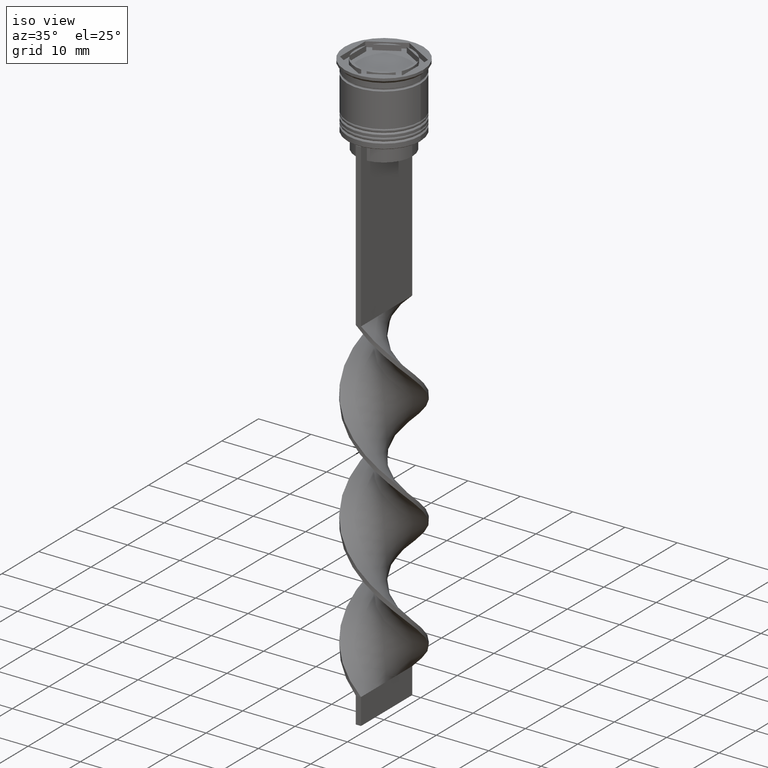
[diagram: clean part render]
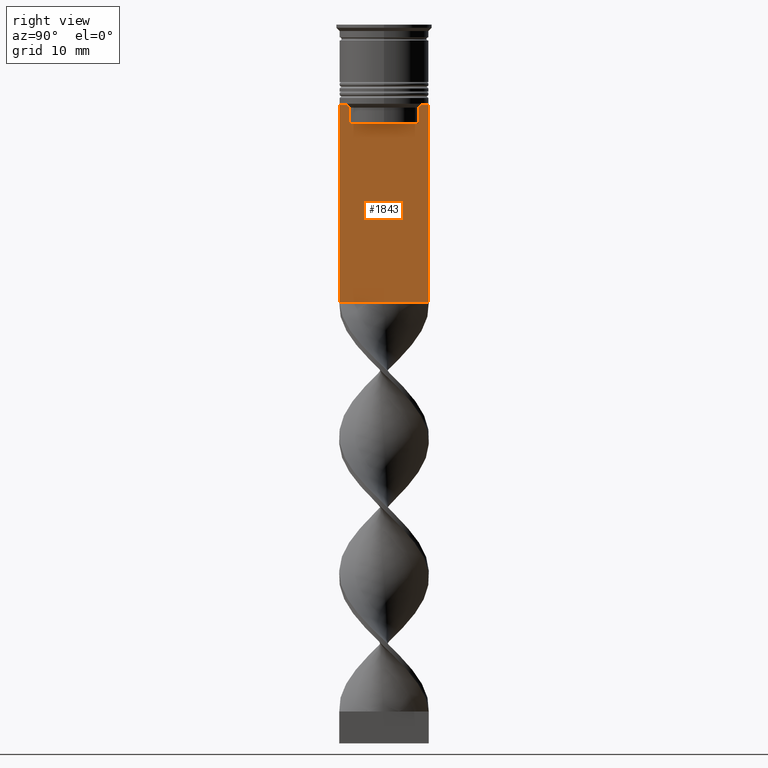
[diagram: tour spotlight — one face highlighted and labeled with its STEP entity id]
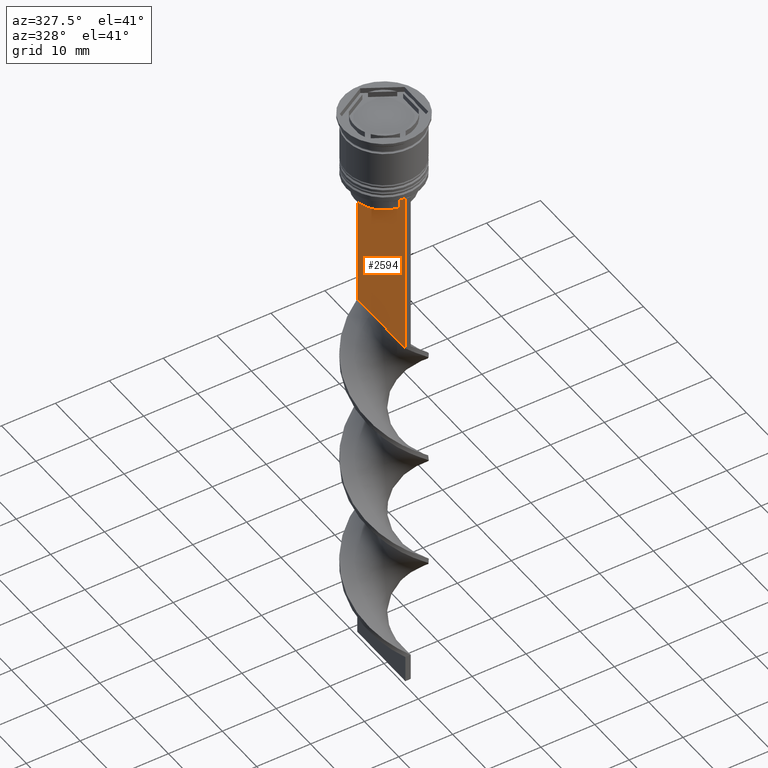
[diagram: tour spotlight — one face highlighted and labeled with its STEP entity id]
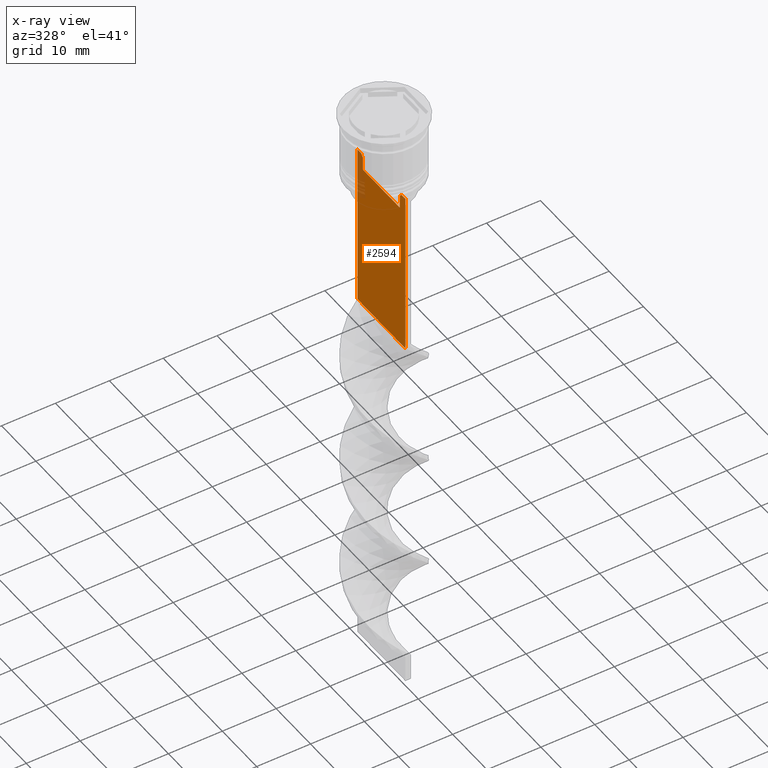
[diagram: x-ray of the same camera — body ghosted, this tour face saturated]
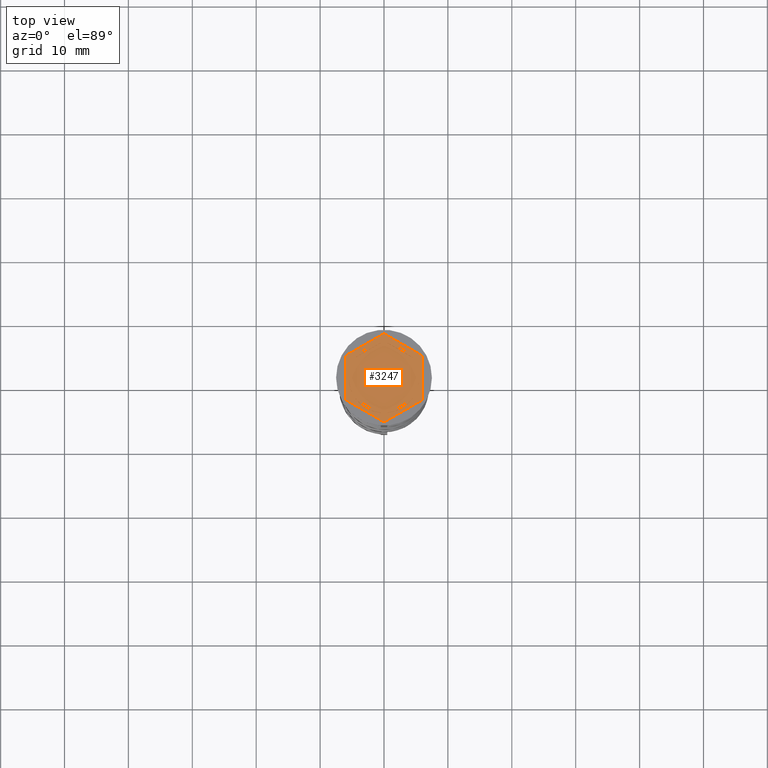
[diagram: tour spotlight — one face highlighted and labeled with its STEP entity id]
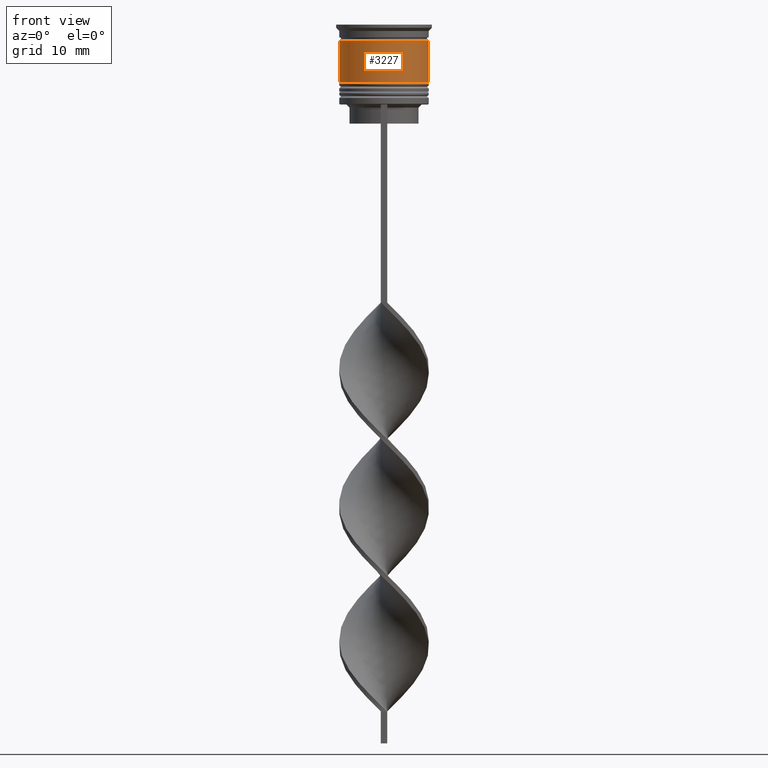
[diagram: tour spotlight — one face highlighted and labeled with its STEP entity id]
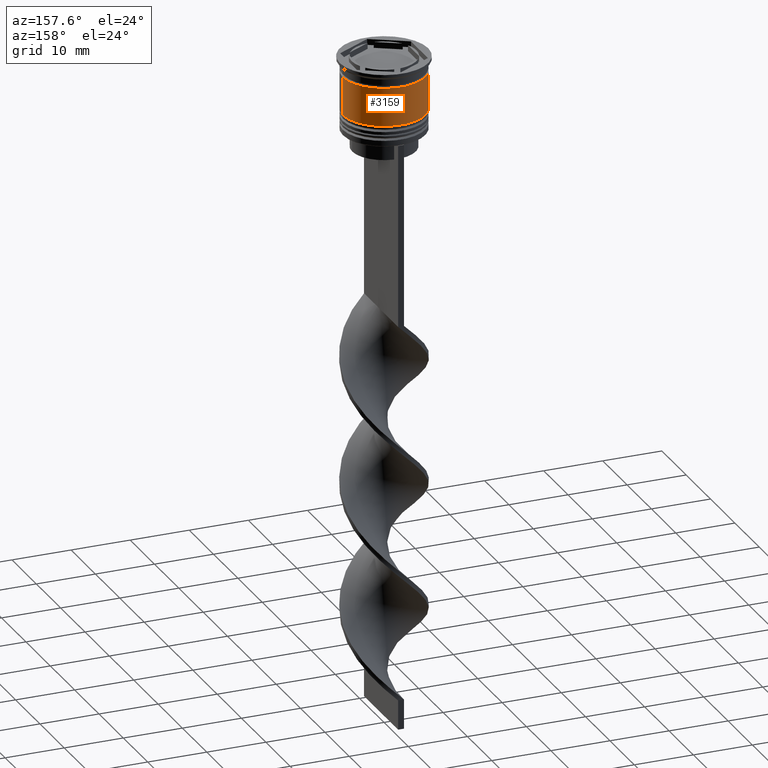
[diagram: tour spotlight — one face highlighted and labeled with its STEP entity id]
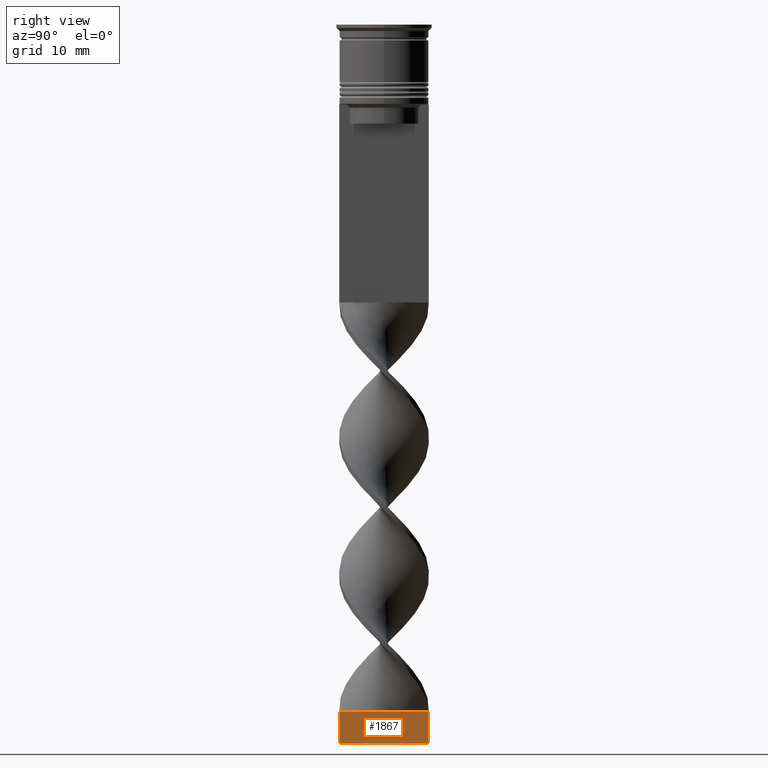
[diagram: tour spotlight — one face highlighted and labeled with its STEP entity id]
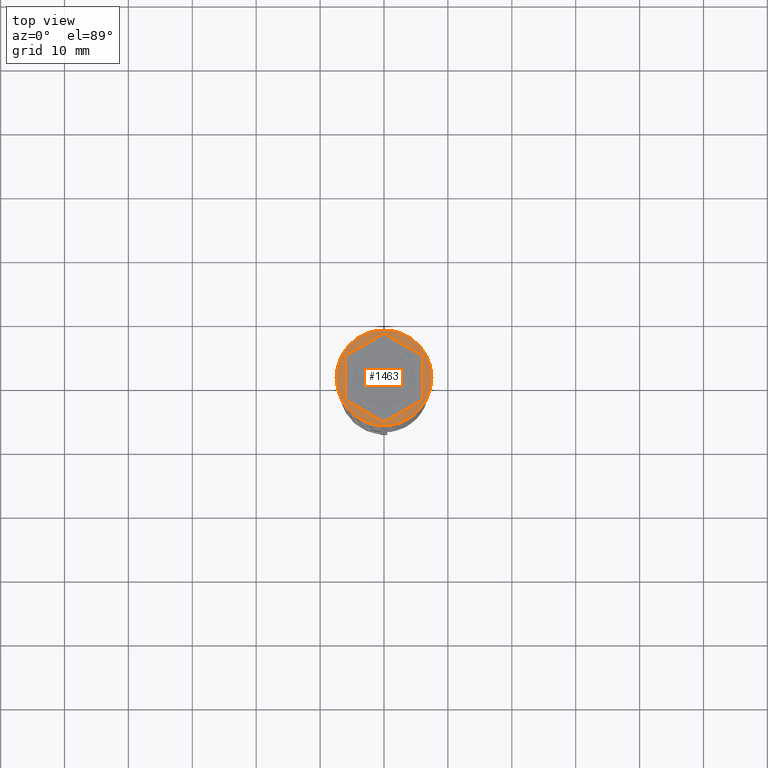
[diagram: tour spotlight — one face highlighted and labeled with its STEP entity id]
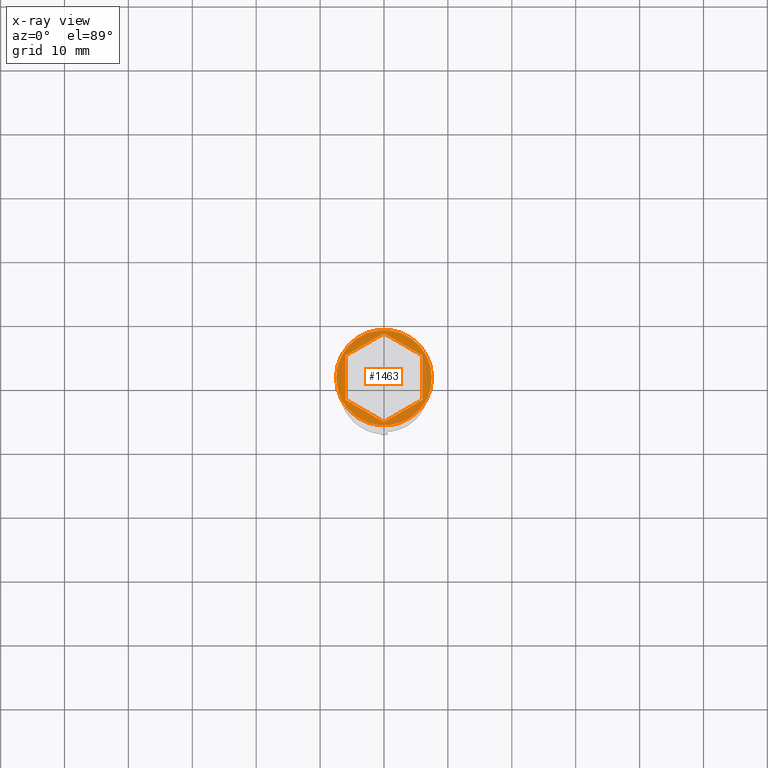
[diagram: x-ray of the same camera — body ghosted, this tour face saturated]
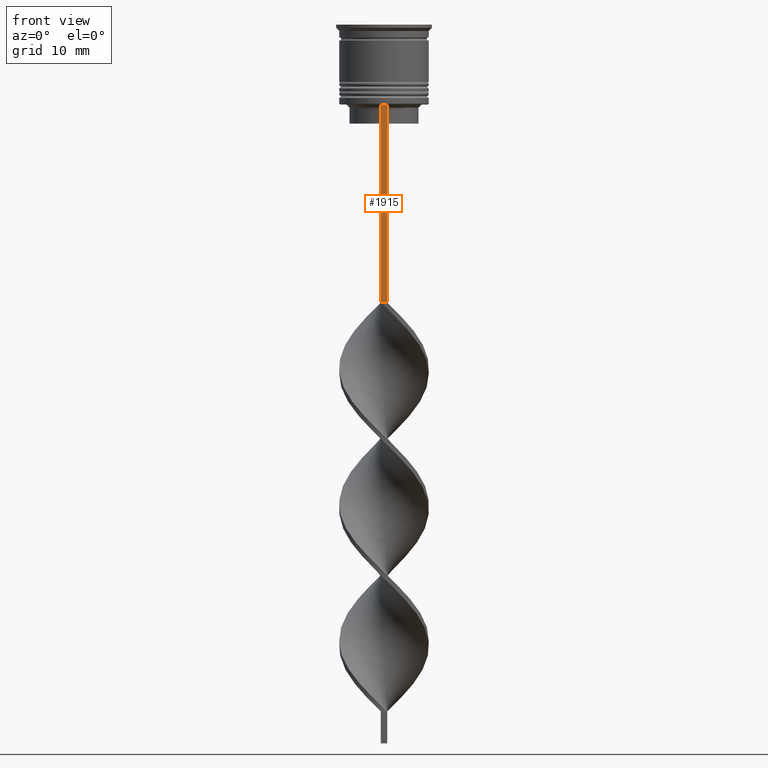
[diagram: tour spotlight — one face highlighted and labeled with its STEP entity id]
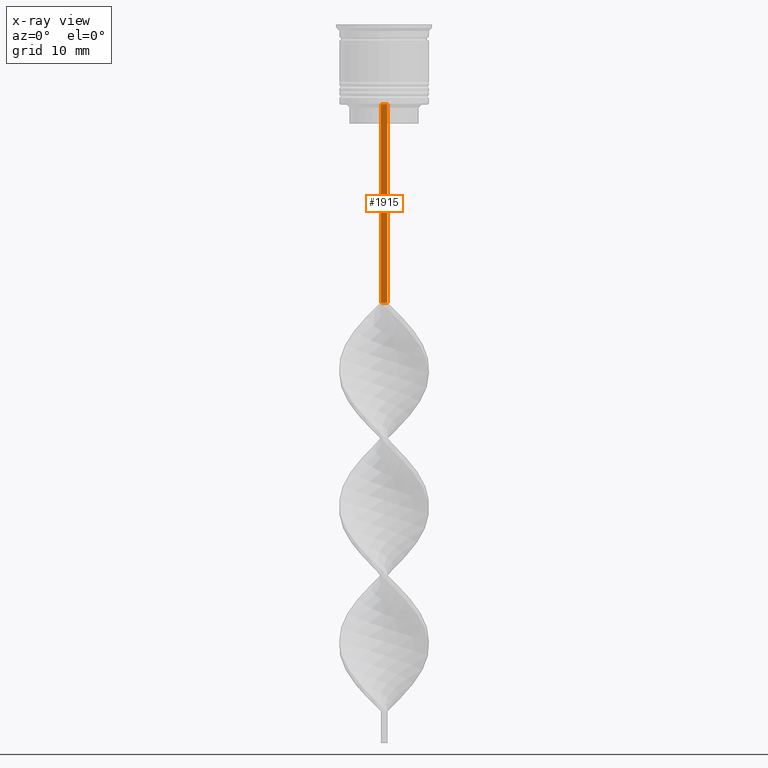
[diagram: x-ray of the same camera — body ghosted, this tour face saturated]
A machine part: a face-by-face anatomy tour. The part has 98 B-rep faces; the first image is the clean iso view, then the 8 largest visible faces are spotlighted one at a time (largest first), each with its STEP entity span.

Face 1 — right view, entity #1843. In plain terms, the highlighted planar face has unit normal (-1, 0, 0).
Definition (entity closure, byte-faithful):
#44 = EDGE_CURVE ( 'NONE', #802, #3060, #890, .T. ) ;
#74 = CARTESIAN_POINT ( 'NONE',  ( 0.5000000000000000000, -5.376802023508029826, -13.00000000000000178 ) ) ;
#81 = VERTEX_POINT ( 'NONE', #74 ) ;
#125 = DIRECTION ( 'NONE',  ( 0.000000000000000000, -1.000000000000000000, 0.000000000000000000 ) ) ;
#148 = CARTESIAN_POINT ( 'NONE',  ( 0.5000000000000000000, 5.711478846560141598, -12.66669470477064685 ) ) ;
#215 = DIRECTION ( 'NONE',  ( -1.000000000000000000, 0.000000000000000000, 0.000000000000000000 ) ) ;
#263 = VECTOR ( 'NONE', #422, 1000.000000000000000 ) ;
#297 = CARTESIAN_POINT ( 'NONE',  ( 0.5000000000000000000, 5.878775382679629402, -12.50000000000000000 ) ) ;
#310 = ORIENTED_EDGE ( 'NONE', *, *, #2159, .T. ) ;
#392 = DIRECTION ( 'NONE',  ( 0.000000000000000000, 0.000000000000000000, -1.000000000000000000 ) ) ;
#422 = DIRECTION ( 'NONE',  ( 0.000000000000000000, -1.000000000000000000, 0.000000000000000000 ) ) ;
#492 = CARTESIAN_POINT ( 'NONE',  ( 0.5000000000000000000, 5.376802023508029826, -13.00000000000000178 ) ) ;
#507 = PLANE ( 'NONE',  #3508 ) ;
#557 = CARTESIAN_POINT ( 'NONE',  ( 0.5000000000000000000, -6.999999999999997335, -12.50000000000000000 ) ) ;
#564 = DIRECTION ( 'NONE',  ( 0.000000000000000000, 0.000000000000000000, 1.000000000000000000 ) ) ;
#629 = EDGE_CURVE ( 'NONE', #81, #2119, #2329, .T. ) ;
#712 = VECTOR ( 'NONE', #1178, 1000.000000000000000 ) ;
#752 = VERTEX_POINT ( 'NONE', #919 ) ;
#802 = VERTEX_POINT ( 'NONE', #3439 ) ;
#858 = B_SPLINE_CURVE_WITH_KNOTS ( 'NONE', 3,
 ( #1777, #148, #1500, #961 ),
 .UNSPECIFIED., .F., .F.,
 ( 4, 4 ),
 ( 0.01003009312103698807, 0.01073859663834952557 ),
 .UNSPECIFIED. ) ;
#883 = EDGE_CURVE ( 'NONE', #2552, #2520, #1737, .T. ) ;
#890 = LINE ( 'NONE', #946, #712 ) ;
#919 = CARTESIAN_POINT ( 'NONE',  ( 0.5000000000000000000, 5.376802023508029826, -15.50000000000000000 ) ) ;
#925 = VERTEX_POINT ( 'NONE', #2268 ) ;
#946 = CARTESIAN_POINT ( 'NONE',  ( 0.5000000000000000000, -6.999999999999997335, -12.50000000000000000 ) ) ;
#954 = CARTESIAN_POINT ( 'NONE',  ( 0.5000000000000000000, -5.376802023508029826, -13.00000000000000178 ) ) ;
#961 = CARTESIAN_POINT ( 'NONE',  ( 0.5000000000000000000, 5.376802023508029826, -13.00000000000000178 ) ) ;
#985 = DIRECTION ( 'NONE',  ( 0.000000000000000000, 0.000000000000000000, -1.000000000000000000 ) ) ;
#995 = EDGE_CURVE ( 'NONE', #1692, #81, #1584, .T. ) ;
#1025 = VECTOR ( 'NONE', #1590, 1000.000000000000000 ) ;
#1028 = ORIENTED_EDGE ( 'NONE', *, *, #2744, .T. ) ;
#1038 = VERTEX_POINT ( 'NONE', #492 ) ;
#1178 = DIRECTION ( 'NONE',  ( 0.000000000000000000, -1.000000000000000000, 0.000000000000000000 ) ) ;
#1191 = ORIENTED_EDGE ( 'NONE', *, *, #2683, .T. ) ;
#1202 = VECTOR ( 'NONE', #392, 1000.000000000000000 ) ;
#1207 = LINE ( 'NONE', #2868, #2345 ) ;
#1298 = CARTESIAN_POINT ( 'NONE',  ( 0.5000000000000000000, -6.881860213634102053, -12.50000000000000000 ) ) ;
#1312 = CARTESIAN_POINT ( 'NONE',  ( 0.5000000000000000000, -5.711478856069293286, -12.66669469529570335 ) ) ;
#1363 = CARTESIAN_POINT ( 'NONE',  ( 0.5000000000000000000, -5.544156999454441959, -12.83336396790503642 ) ) ;
#1445 = CARTESIAN_POINT ( 'NONE',  ( 0.5000000000000000000, -6.999999999999997335, -43.50000000000000000 ) ) ;
#1481 = VECTOR ( 'NONE', #2378, 1000.000000000000000 ) ;
#1500 = CARTESIAN_POINT ( 'NONE',  ( 0.5000000000000000000, 5.544156989057553275, -12.83336397825725861 ) ) ;
#1553 = LINE ( 'NONE', #2666, #2163 ) ;
#1554 = CARTESIAN_POINT ( 'NONE',  ( 0.5000000000000000000, 5.376802023508029826, 0.000000000000000000 ) ) ;
#1584 = LINE ( 'NONE', #2735, #1481 ) ;
#1590 = DIRECTION ( 'NONE',  ( 0.000000000000000000, -1.000000000000000000, 0.000000000000000000 ) ) ;
#1692 = VERTEX_POINT ( 'NONE', #2993 ) ;
#1737 = LINE ( 'NONE', #1445, #2338 ) ;
#1772 = CARTESIAN_POINT ( 'NONE',  ( 0.5000000000000000000, 6.881860213634102053, -12.50000000000000000 ) ) ;
#1777 = CARTESIAN_POINT ( 'NONE',  ( 0.5000000000000000000, 5.878775382679629402, -12.50000000000000000 ) ) ;
#1782 = ORIENTED_EDGE ( 'NONE', *, *, #629, .T. ) ;
#1816 = ORIENTED_EDGE ( 'NONE', *, *, #995, .T. ) ;
#1818 = VECTOR ( 'NONE', #2650, 1000.000000000000000 ) ;
#1843 = ADVANCED_FACE ( 'NONE', ( #3601 ), #507, .F. ) ;
#1931 = EDGE_CURVE ( 'NONE', #802, #2520, #1207, .T. ) ;
#2086 = CARTESIAN_POINT ( 'NONE',  ( 0.5000000000000000000, -6.999999999999997335, -12.50000000000000000 ) ) ;
#2119 = VERTEX_POINT ( 'NONE', #2572 ) ;
#2126 = EDGE_CURVE ( 'NONE', #1038, #752, #2297, .T. ) ;
#2159 = EDGE_CURVE ( 'NONE', #2932, #925, #3165, .T. ) ;
#2163 = VECTOR ( 'NONE', #125, 1000.000000000000000 ) ;
#2170 = VECTOR ( 'NONE', #985, 1000.000000000000000 ) ;
#2184 = ORIENTED_EDGE ( 'NONE', *, *, #2126, .T. ) ;
#2268 = CARTESIAN_POINT ( 'NONE',  ( 0.5000000000000000000, -6.999999999999997335, -12.50000000000000000 ) ) ;
#2272 = EDGE_CURVE ( 'NONE', #752, #1692, #3137, .T. ) ;
#2297 = LINE ( 'NONE', #1554, #2170 ) ;
#2329 = B_SPLINE_CURVE_WITH_KNOTS ( 'NONE', 3,
 ( #954, #1363, #1312, #2389 ),
 .UNSPECIFIED., .F., .F.,
 ( 4, 4 ),
 ( 0.02539176325380714666, 0.02610162431828674801 ),
 .UNSPECIFIED. ) ;
#2338 = VECTOR ( 'NONE', #2855, 1000.000000000000000 ) ;
#2345 = VECTOR ( 'NONE', #2576, 1000.000000000000000 ) ;
#2378 = DIRECTION ( 'NONE',  ( -0.000000000000000000, -0.000000000000000000, 1.000000000000000000 ) ) ;
#2380 = LINE ( 'NONE', #3418, #1202 ) ;
#2389 = CARTESIAN_POINT ( 'NONE',  ( 0.5000000000000000000, -5.878775382679629402, -12.50000000000000000 ) ) ;
#2476 = CARTESIAN_POINT ( 'NONE',  ( 0.5000000000000000000, -6.999999999999997335, 1.535668847618198329 ) ) ;
#2520 = VERTEX_POINT ( 'NONE', #2569 ) ;
#2548 = VERTEX_POINT ( 'NONE', #297 ) ;
#2552 = VERTEX_POINT ( 'NONE', #2813 ) ;
#2569 = CARTESIAN_POINT ( 'NONE',  ( 0.5000000000000000000, 7.000000000000002665, -43.50000000000000000 ) ) ;
#2572 = CARTESIAN_POINT ( 'NONE',  ( 0.5000000000000000000, -5.878775382679629402, -12.50000000000000000 ) ) ;
#2576 = DIRECTION ( 'NONE',  ( 0.000000000000000000, 0.000000000000000000, -1.000000000000000000 ) ) ;
#2603 = ORIENTED_EDGE ( 'NONE', *, *, #2272, .T. ) ;
#2650 = DIRECTION ( 'NONE',  ( 0.000000000000000000, -1.000000000000000000, 0.000000000000000000 ) ) ;
#2666 = CARTESIAN_POINT ( 'NONE',  ( 0.5000000000000000000, -6.999999999999997335, -12.50000000000000000 ) ) ;
#2683 = EDGE_CURVE ( 'NONE', #925, #2552, #2380, .T. ) ;
#2735 = CARTESIAN_POINT ( 'NONE',  ( 0.5000000000000000000, -5.376802023508029826, 0.000000000000000000 ) ) ;
#2741 = ORIENTED_EDGE ( 'NONE', *, *, #2815, .T. ) ;
#2744 = EDGE_CURVE ( 'NONE', #2548, #1038, #858, .T. ) ;
#2813 = CARTESIAN_POINT ( 'NONE',  ( 0.5000000000000000000, -6.999999999999997335, -43.50000000000000000 ) ) ;
#2815 = EDGE_CURVE ( 'NONE', #3060, #2548, #1553, .T. ) ;
#2855 = DIRECTION ( 'NONE',  ( 0.000000000000000000, 1.000000000000000000, 0.000000000000000000 ) ) ;
#2868 = CARTESIAN_POINT ( 'NONE',  ( 0.5000000000000000000, 7.000000000000002665, 1.535668847618198329 ) ) ;
#2932 = VERTEX_POINT ( 'NONE', #1298 ) ;
#2993 = CARTESIAN_POINT ( 'NONE',  ( 0.5000000000000000000, -5.376802023508029826, -15.50000000000000000 ) ) ;
#3023 = ORIENTED_EDGE ( 'NONE', *, *, #3593, .T. ) ;
#3060 = VERTEX_POINT ( 'NONE', #1772 ) ;
#3068 = ORIENTED_EDGE ( 'NONE', *, *, #883, .T. ) ;
#3099 = ORIENTED_EDGE ( 'NONE', *, *, #44, .T. ) ;
#3137 = LINE ( 'NONE', #3213, #1818 ) ;
#3165 = LINE ( 'NONE', #2086, #263 ) ;
#3213 = CARTESIAN_POINT ( 'NONE',  ( 0.5000000000000000000, 5.400000000000003908, -15.50000000000000000 ) ) ;
#3220 = ORIENTED_EDGE ( 'NONE', *, *, #1931, .F. ) ;
#3286 = EDGE_LOOP ( 'NONE', ( #2741, #1028, #2184, #2603, #1816, #1782, #3023, #310, #1191, #3068, #3220, #3099 ) ) ;
#3293 = LINE ( 'NONE', #557, #1025 ) ;
#3418 = CARTESIAN_POINT ( 'NONE',  ( 0.5000000000000000000, -6.999999999999997335, 1.535668847618198329 ) ) ;
#3439 = CARTESIAN_POINT ( 'NONE',  ( 0.5000000000000000000, 7.000000000000002665, -12.50000000000000000 ) ) ;
#3508 = AXIS2_PLACEMENT_3D ( 'NONE', #2476, #215, #564 ) ;
#3593 = EDGE_CURVE ( 'NONE', #2119, #2932, #3293, .T. ) ;
#3601 = FACE_OUTER_BOUND ( 'NONE', #3286, .T. ) ;

Face 2 — auxiliary view, entity #2594. An x-ray twin of the same camera follows (body ghosted, this face saturated) — the face is partly hidden behind the body. In plain terms, the highlighted planar face has unit normal (-1, 0, 0).
Definition (entity closure, byte-faithful):
#13 = VERTEX_POINT ( 'NONE', #111 ) ;
#62 = CARTESIAN_POINT ( 'NONE',  ( -0.5000000000000000000, -6.999999999999997335, -43.50000000000000000 ) ) ;
#67 = DIRECTION ( 'NONE',  ( 0.000000000000000000, -1.000000000000000000, 0.000000000000000000 ) ) ;
#111 = CARTESIAN_POINT ( 'NONE',  ( -0.5000000000000000000, 5.376802023508029826, -13.00000000000000178 ) ) ;
#115 = B_SPLINE_CURVE_WITH_KNOTS ( 'NONE', 3,
 ( #533, #2145, #3253, #1961 ),
 .UNSPECIFIED., .F., .F.,
 ( 4, 4 ),
 ( 0.02539176325380714666, 0.02610162431828674801 ),
 .UNSPECIFIED. ) ;
#175 = DIRECTION ( 'NONE',  ( 0.000000000000000000, 0.000000000000000000, -1.000000000000000000 ) ) ;
#240 = VERTEX_POINT ( 'NONE', #923 ) ;
#253 = CARTESIAN_POINT ( 'NONE',  ( -0.5000000000000000000, -6.999999999999997335, -12.50000000000000000 ) ) ;
#282 = DIRECTION ( 'NONE',  ( 0.000000000000000000, 0.000000000000000000, 1.000000000000000000 ) ) ;
#356 = VERTEX_POINT ( 'NONE', #3600 ) ;
#367 = EDGE_CURVE ( 'NONE', #356, #1446, #2244, .T. ) ;
#449 = ORIENTED_EDGE ( 'NONE', *, *, #1756, .F. ) ;
#457 = CARTESIAN_POINT ( 'NONE',  ( -0.5000000000000000000, 5.376802023508029826, -15.50000000000000000 ) ) ;
#504 = LINE ( 'NONE', #1666, #2101 ) ;
#533 = CARTESIAN_POINT ( 'NONE',  ( -0.5000000000000000000, -5.376802023508029826, -13.00000000000000178 ) ) ;
#540 = DIRECTION ( 'NONE',  ( 0.000000000000000000, 0.000000000000000000, -1.000000000000000000 ) ) ;
#659 = VECTOR ( 'NONE', #1068, 1000.000000000000000 ) ;
#751 = EDGE_CURVE ( 'NONE', #356, #240, #504, .T. ) ;
#796 = DIRECTION ( 'NONE',  ( 0.000000000000000000, -1.000000000000000000, 0.000000000000000000 ) ) ;
#833 = CARTESIAN_POINT ( 'NONE',  ( -0.5000000000000000000, -6.881860213634102053, -12.50000000000000000 ) ) ;
#846 = DIRECTION ( 'NONE',  ( -0.000000000000000000, -0.000000000000000000, 1.000000000000000000 ) ) ;
#860 = ORIENTED_EDGE ( 'NONE', *, *, #2481, .F. ) ;
#863 = CARTESIAN_POINT ( 'NONE',  ( -0.5000000000000000000, 5.376802023508029826, 0.000000000000000000 ) ) ;
#923 = CARTESIAN_POINT ( 'NONE',  ( -0.5000000000000000000, 6.881860213634102053, -12.50000000000000000 ) ) ;
#934 = DIRECTION ( 'NONE',  ( 0.000000000000000000, -1.000000000000000000, 0.000000000000000000 ) ) ;
#936 = EDGE_CURVE ( 'NONE', #2362, #1637, #2843, .T. ) ;
#1044 = ORIENTED_EDGE ( 'NONE', *, *, #2900, .F. ) ;
#1068 = DIRECTION ( 'NONE',  ( 0.000000000000000000, 1.000000000000000000, 0.000000000000000000 ) ) ;
#1090 = EDGE_CURVE ( 'NONE', #1637, #1894, #3231, .T. ) ;
#1091 = VECTOR ( 'NONE', #796, 1000.000000000000000 ) ;
#1159 = ORIENTED_EDGE ( 'NONE', *, *, #1659, .F. ) ;
#1161 = PLANE ( 'NONE',  #2589 ) ;
#1291 = ORIENTED_EDGE ( 'NONE', *, *, #2486, .F. ) ;
#1302 = VECTOR ( 'NONE', #67, 1000.000000000000000 ) ;
#1318 = CARTESIAN_POINT ( 'NONE',  ( -0.5000000000000000000, 7.000000000000002665, -43.50000000000000000 ) ) ;
#1356 = LINE ( 'NONE', #3273, #1091 ) ;
#1377 = B_SPLINE_CURVE_WITH_KNOTS ( 'NONE', 3,
 ( #1607, #2707, #1623, #2720 ),
 .UNSPECIFIED., .F., .F.,
 ( 4, 4 ),
 ( 0.01003009312103698807, 0.01073859663834952557 ),
 .UNSPECIFIED. ) ;
#1406 = ORIENTED_EDGE ( 'NONE', *, *, #1090, .F. ) ;
#1414 = EDGE_CURVE ( 'NONE', #2035, #3290, #115, .T. ) ;
#1446 = VERTEX_POINT ( 'NONE', #1318 ) ;
#1448 = FACE_OUTER_BOUND ( 'NONE', #1944, .T. ) ;
#1564 = CARTESIAN_POINT ( 'NONE',  ( -0.5000000000000000000, -6.999999999999997335, 1.535668847618198329 ) ) ;
#1585 = CARTESIAN_POINT ( 'NONE',  ( -0.5000000000000000000, -5.376802023508029826, -15.50000000000000000 ) ) ;
#1589 = VECTOR ( 'NONE', #175, 1000.000000000000000 ) ;
#1607 = CARTESIAN_POINT ( 'NONE',  ( -0.5000000000000000000, 5.878775382679629402, -12.50000000000000000 ) ) ;
#1609 = VERTEX_POINT ( 'NONE', #1585 ) ;
#1611 = CARTESIAN_POINT ( 'NONE',  ( -0.5000000000000000000, -5.878775382679629402, -12.50000000000000000 ) ) ;
#1623 = CARTESIAN_POINT ( 'NONE',  ( -0.5000000000000000000, 5.544156989057553275, -12.83336397825725861 ) ) ;
#1637 = VERTEX_POINT ( 'NONE', #253 ) ;
#1659 = EDGE_CURVE ( 'NONE', #1894, #1446, #2538, .T. ) ;
#1666 = CARTESIAN_POINT ( 'NONE',  ( -0.5000000000000000000, -6.999999999999997335, -12.50000000000000000 ) ) ;
#1747 = CARTESIAN_POINT ( 'NONE',  ( -0.5000000000000000000, 5.400000000000003908, -15.50000000000000000 ) ) ;
#1756 = EDGE_CURVE ( 'NONE', #1609, #2035, #2454, .T. ) ;
#1770 = ORIENTED_EDGE ( 'NONE', *, *, #3096, .F. ) ;
#1771 = CARTESIAN_POINT ( 'NONE',  ( -0.5000000000000000000, -5.376802023508029826, -13.00000000000000178 ) ) ;
#1830 = CARTESIAN_POINT ( 'NONE',  ( -0.5000000000000000000, -6.999999999999997335, -12.50000000000000000 ) ) ;
#1894 = VERTEX_POINT ( 'NONE', #62 ) ;
#1944 = EDGE_LOOP ( 'NONE', ( #860, #1291, #3516, #3063, #1159, #1406, #3313, #1044, #2046, #449, #1770, #2884 ) ) ;
#1949 = DIRECTION ( 'NONE',  ( 0.000000000000000000, 0.000000000000000000, -1.000000000000000000 ) ) ;
#1961 = CARTESIAN_POINT ( 'NONE',  ( -0.5000000000000000000, -5.878775382679629402, -12.50000000000000000 ) ) ;
#1991 = VECTOR ( 'NONE', #934, 1000.000000000000000 ) ;
#1994 = VECTOR ( 'NONE', #846, 1000.000000000000000 ) ;
#2024 = VERTEX_POINT ( 'NONE', #2930 ) ;
#2035 = VERTEX_POINT ( 'NONE', #1771 ) ;
#2046 = ORIENTED_EDGE ( 'NONE', *, *, #1414, .F. ) ;
#2101 = VECTOR ( 'NONE', #2275, 1000.000000000000000 ) ;
#2145 = CARTESIAN_POINT ( 'NONE',  ( -0.5000000000000000000, -5.544156999454441959, -12.83336396790503642 ) ) ;
#2198 = DIRECTION ( 'NONE',  ( 0.000000000000000000, -1.000000000000000000, 0.000000000000000000 ) ) ;
#2210 = VERTEX_POINT ( 'NONE', #457 ) ;
#2230 = LINE ( 'NONE', #1830, #2822 ) ;
#2244 = LINE ( 'NONE', #2509, #2755 ) ;
#2253 = CARTESIAN_POINT ( 'NONE',  ( -0.5000000000000000000, -6.999999999999997335, 1.535668847618198329 ) ) ;
#2275 = DIRECTION ( 'NONE',  ( 0.000000000000000000, -1.000000000000000000, 0.000000000000000000 ) ) ;
#2362 = VERTEX_POINT ( 'NONE', #833 ) ;
#2454 = LINE ( 'NONE', #3567, #1994 ) ;
#2464 = VECTOR ( 'NONE', #1949, 1000.000000000000000 ) ;
#2481 = EDGE_CURVE ( 'NONE', #2024, #13, #1377, .T. ) ;
#2486 = EDGE_CURVE ( 'NONE', #240, #2024, #1356, .T. ) ;
#2509 = CARTESIAN_POINT ( 'NONE',  ( -0.5000000000000000000, 7.000000000000002665, 1.535668847618198329 ) ) ;
#2538 = LINE ( 'NONE', #3604, #659 ) ;
#2584 = CARTESIAN_POINT ( 'NONE',  ( -0.5000000000000000000, -6.999999999999997335, -12.50000000000000000 ) ) ;
#2589 = AXIS2_PLACEMENT_3D ( 'NONE', #2253, #3364, #282 ) ;
#2594 = ADVANCED_FACE ( 'NONE', ( #1448 ), #1161, .T. ) ;
#2598 = LINE ( 'NONE', #1747, #1991 ) ;
#2707 = CARTESIAN_POINT ( 'NONE',  ( -0.5000000000000000000, 5.711478846560141598, -12.66669470477064685 ) ) ;
#2720 = CARTESIAN_POINT ( 'NONE',  ( -0.5000000000000000000, 5.376802023508029826, -13.00000000000000178 ) ) ;
#2755 = VECTOR ( 'NONE', #540, 1000.000000000000000 ) ;
#2822 = VECTOR ( 'NONE', #2198, 1000.000000000000000 ) ;
#2843 = LINE ( 'NONE', #2584, #1302 ) ;
#2884 = ORIENTED_EDGE ( 'NONE', *, *, #3000, .F. ) ;
#2900 = EDGE_CURVE ( 'NONE', #3290, #2362, #2230, .T. ) ;
#2930 = CARTESIAN_POINT ( 'NONE',  ( -0.5000000000000000000, 5.878775382679629402, -12.50000000000000000 ) ) ;
#3000 = EDGE_CURVE ( 'NONE', #13, #2210, #3341, .T. ) ;
#3063 = ORIENTED_EDGE ( 'NONE', *, *, #367, .T. ) ;
#3096 = EDGE_CURVE ( 'NONE', #2210, #1609, #2598, .T. ) ;
#3231 = LINE ( 'NONE', #1564, #1589 ) ;
#3253 = CARTESIAN_POINT ( 'NONE',  ( -0.5000000000000000000, -5.711478856069293286, -12.66669469529570335 ) ) ;
#3273 = CARTESIAN_POINT ( 'NONE',  ( -0.5000000000000000000, -6.999999999999997335, -12.50000000000000000 ) ) ;
#3290 = VERTEX_POINT ( 'NONE', #1611 ) ;
#3313 = ORIENTED_EDGE ( 'NONE', *, *, #936, .F. ) ;
#3341 = LINE ( 'NONE', #863, #2464 ) ;
#3364 = DIRECTION ( 'NONE',  ( -1.000000000000000000, 0.000000000000000000, 0.000000000000000000 ) ) ;
#3516 = ORIENTED_EDGE ( 'NONE', *, *, #751, .F. ) ;
#3567 = CARTESIAN_POINT ( 'NONE',  ( -0.5000000000000000000, -5.376802023508029826, 0.000000000000000000 ) ) ;
#3600 = CARTESIAN_POINT ( 'NONE',  ( -0.5000000000000000000, 7.000000000000002665, -12.50000000000000000 ) ) ;
#3604 = CARTESIAN_POINT ( 'NONE',  ( -0.5000000000000000000, -6.999999999999997335, -43.50000000000000000 ) ) ;

Face 3 — top view, entity #3247. In plain terms, the highlighted planar face has unit normal (0, 0, 1).
Definition (entity closure, byte-faithful):
#1 = ORIENTED_EDGE ( 'NONE', *, *, #209, .F. ) ;
#29 = CARTESIAN_POINT ( 'NONE',  ( 0.5156865167015526330, -5.475770942661155161, -1.000000000000000888 ) ) ;
#36 = CARTESIAN_POINT ( 'NONE',  ( -5.000000000000000888, -2.291287847477921247, -1.000000000000000888 ) ) ;
#39 = ORIENTED_EDGE ( 'NONE', *, *, #2528, .T. ) ;
#68 = EDGE_LOOP ( 'NONE', ( #1, #725 ) ) ;
#170 = DIRECTION ( 'NONE',  ( 0.8660254037844385966, 0.5000000000000001110, -0.000000000000000000 ) ) ;
#184 = VECTOR ( 'NONE', #674, 1000.000000000000114 ) ;
#185 = ORIENTED_EDGE ( 'NONE', *, *, #2252, .T. ) ;
#209 = EDGE_CURVE ( 'NONE', #2515, #2991, #2914, .T. ) ;
#211 = LINE ( 'NONE', #2171, #2396 ) ;
#230 = DIRECTION ( 'NONE',  ( 1.000000000000000000, 0.000000000000000000, 0.000000000000000000 ) ) ;
#231 = DIRECTION ( 'NONE',  ( 0.000000000000000000, 0.000000000000000000, 1.000000000000000000 ) ) ;
#237 = DIRECTION ( 'NONE',  ( 0.000000000000000000, 0.000000000000000000, 1.000000000000000000 ) ) ;
#256 = EDGE_CURVE ( 'NONE', #2179, #2691, #2133, .T. ) ;
#271 = CARTESIAN_POINT ( 'NONE',  ( -5.000000000000000888, -2.886751345948129099, -1.000000000000000888 ) ) ;
#276 = VERTEX_POINT ( 'NONE', #2391 ) ;
#288 = DIRECTION ( 'NONE',  ( -0.8660254037844385966, 0.5000000000000001110, 0.000000000000000000 ) ) ;
#296 = LINE ( 'NONE', #1411, #1358 ) ;
#419 = CARTESIAN_POINT ( 'NONE',  ( -6.000000000000000000, -3.464101615137755719, -1.000000000000000000 ) ) ;
#427 = EDGE_LOOP ( 'NONE', ( #599, #3056 ) ) ;
#441 = CARTESIAN_POINT ( 'NONE',  ( -4.280685092543093048E-16, -6.928203230275507885, -1.000000000000000000 ) ) ;
#448 = EDGE_CURVE ( 'NONE', #2733, #2751, #296, .T. ) ;
#472 = EDGE_CURVE ( 'NONE', #2887, #1327, #543, .T. ) ;
#491 = DIRECTION ( 'NONE',  ( 0.000000000000000000, 0.000000000000000000, 1.000000000000000000 ) ) ;
#501 = VERTEX_POINT ( 'NONE', #2381 ) ;
#509 = DIRECTION ( 'NONE',  ( 0.000000000000000000, 0.000000000000000000, 1.000000000000000000 ) ) ;
#510 = DIRECTION ( 'NONE',  ( 0.000000000000000000, 0.000000000000000000, 1.000000000000000000 ) ) ;
#538 = DIRECTION ( 'NONE',  ( 1.000000000000000000, 0.000000000000000000, -0.000000000000000000 ) ) ;
#543 = CIRCLE ( 'NONE', #2864, 5.500000000000001776 ) ;
#592 = EDGE_CURVE ( 'NONE', #1327, #2887, #3435, .T. ) ;
#599 = ORIENTED_EDGE ( 'NONE', *, *, #1626, .F. ) ;
#635 = DIRECTION ( 'NONE',  ( 0.8660254037844385966, 0.5000000000000000000, 0.000000000000000000 ) ) ;
#653 = CIRCLE ( 'NONE', #1136, 5.500000000000001776 ) ;
#668 = DIRECTION ( 'NONE',  ( 0.000000000000000000, 0.000000000000000000, 1.000000000000000000 ) ) ;
#674 = DIRECTION ( 'NONE',  ( -0.8660254037844387076, -0.4999999999999997224, 0.000000000000000000 ) ) ;
#675 = EDGE_CURVE ( 'NONE', #276, #830, #3138, .T. ) ;
#687 = EDGE_CURVE ( 'NONE', #3374, #501, #211, .T. ) ;
#694 = CARTESIAN_POINT ( 'NONE',  ( 5.999999999999998224, -3.464101615137753942, -1.000000000000000000 ) ) ;
#713 = DIRECTION ( 'NONE',  ( 2.503857664561932376E-16, 1.000000000000000000, 0.000000000000000000 ) ) ;
#725 = ORIENTED_EDGE ( 'NONE', *, *, #1395, .F. ) ;
#747 = DIRECTION ( 'NONE',  ( 0.000000000000000000, 0.000000000000000000, 1.000000000000000000 ) ) ;
#804 = FACE_BOUND ( 'NONE', #68, .T. ) ;
#830 = VERTEX_POINT ( 'NONE', #1252 ) ;
#847 = AXIS2_PLACEMENT_3D ( 'NONE', #2986, #1909, #538 ) ;
#852 = LINE ( 'NONE', #2556, #1996 ) ;
#872 = DIRECTION ( 'NONE',  ( -0.8660254037844387076, 0.4999999999999998335, 0.000000000000000000 ) ) ;
#875 = ORIENTED_EDGE ( 'NONE', *, *, #675, .F. ) ;
#911 = DIRECTION ( 'NONE',  ( 1.000000000000000000, 0.000000000000000000, 0.000000000000000000 ) ) ;
#943 = CARTESIAN_POINT ( 'NONE',  ( -0.5156865167015569629, 5.475770942661155161, -1.000000000000000888 ) ) ;
#947 = DIRECTION ( 'NONE',  ( 0.8660254037844388186, -0.4999999999999997224, 0.000000000000000000 ) ) ;
#965 = AXIS2_PLACEMENT_3D ( 'NONE', #1427, #231, #1390 ) ;
#981 = LINE ( 'NONE', #441, #1601 ) ;
#1009 = DIRECTION ( 'NONE',  ( 1.000000000000000000, 0.000000000000000000, 0.000000000000000000 ) ) ;
#1015 = CARTESIAN_POINT ( 'NONE',  ( -6.000000000000000000, -3.464101615137755719, -1.000000000000000000 ) ) ;
#1043 = EDGE_CURVE ( 'NONE', #2691, #2179, #653, .T. ) ;
#1071 = VERTEX_POINT ( 'NONE', #2155 ) ;
#1094 = LINE ( 'NONE', #3592, #3571 ) ;
#1121 = ORIENTED_EDGE ( 'NONE', *, *, #448, .T. ) ;
#1125 = ORIENTED_EDGE ( 'NONE', *, *, #472, .F. ) ;
#1136 = AXIS2_PLACEMENT_3D ( 'NONE', #1603, #509, #1009 ) ;
#1148 = VERTEX_POINT ( 'NONE', #419 ) ;
#1150 = LINE ( 'NONE', #3128, #1198 ) ;
#1166 = LINE ( 'NONE', #2258, #2104 ) ;
#1174 = ORIENTED_EDGE ( 'NONE', *, *, #3311, .F. ) ;
#1198 = VECTOR ( 'NONE', #2546, 1000.000000000000000 ) ;
#1235 = EDGE_LOOP ( 'NONE', ( #875, #3171, #3304 ) ) ;
#1252 = CARTESIAN_POINT ( 'NONE',  ( -5.500000000000001776, 0.000000000000000000, -1.000000000000000000 ) ) ;
#1327 = VERTEX_POINT ( 'NONE', #1341 ) ;
#1341 = CARTESIAN_POINT ( 'NONE',  ( 4.484313483298445036, -3.184483095183233026, -1.000000000000000888 ) ) ;
#1343 = ORIENTED_EDGE ( 'NONE', *, *, #2247, .T. ) ;
#1358 = VECTOR ( 'NONE', #2236, 1000.000000000000227 ) ;
#1372 = CARTESIAN_POINT ( 'NONE',  ( 0.000000000000000000, 0.000000000000000000, -1.000000000000000000 ) ) ;
#1390 = DIRECTION ( 'NONE',  ( 1.000000000000000000, 0.000000000000000000, 0.000000000000000000 ) ) ;
#1395 = EDGE_CURVE ( 'NONE', #2991, #2515, #1166, .T. ) ;
#1397 = EDGE_LOOP ( 'NONE', ( #1688, #2534 ) ) ;
#1400 = EDGE_CURVE ( 'NONE', #830, #2539, #1426, .T. ) ;
#1411 = CARTESIAN_POINT ( 'NONE',  ( 0.000000000000000000, 6.928203230275506996, -1.000000000000000000 ) ) ;
#1426 = CIRCLE ( 'NONE', #2340, 5.500000000000001776 ) ;
#1427 = CARTESIAN_POINT ( 'NONE',  ( 0.000000000000000000, 0.000000000000000000, -1.000000000000000000 ) ) ;
#1592 = CIRCLE ( 'NONE', #965, 5.500000000000001776 ) ;
#1601 = VECTOR ( 'NONE', #635, 1000.000000000000227 ) ;
#1603 = CARTESIAN_POINT ( 'NONE',  ( 0.000000000000000000, 0.000000000000000000, -1.000000000000000000 ) ) ;
#1626 = EDGE_CURVE ( 'NONE', #501, #3374, #1592, .T. ) ;
#1629 = FACE_BOUND ( 'NONE', #427, .T. ) ;
#1638 = CARTESIAN_POINT ( 'NONE',  ( -4.484313483298445036, -3.184483095183233470, -1.000000000000000888 ) ) ;
#1688 = ORIENTED_EDGE ( 'NONE', *, *, #1043, .F. ) ;
#1697 = EDGE_CURVE ( 'NONE', #2465, #2036, #2108, .T. ) ;
#1866 = AXIS2_PLACEMENT_3D ( 'NONE', #2113, #747, #3519 ) ;
#1909 = DIRECTION ( 'NONE',  ( 0.000000000000000000, 0.000000000000000000, 1.000000000000000000 ) ) ;
#1925 = AXIS2_PLACEMENT_3D ( 'NONE', #3544, #491, #230 ) ;
#1936 = CARTESIAN_POINT ( 'NONE',  ( 5.000000000000000888, 2.291287847477922135, -1.000000000000000888 ) ) ;
#1982 = CARTESIAN_POINT ( 'NONE',  ( 0.000000000000000000, 0.000000000000000000, -1.000000000000000000 ) ) ;
#1996 = VECTOR ( 'NONE', #872, 1000.000000000000000 ) ;
#2012 = CARTESIAN_POINT ( 'NONE',  ( -4.280685092543093048E-16, -6.928203230275507885, -1.000000000000000000 ) ) ;
#2036 = VERTEX_POINT ( 'NONE', #2332 ) ;
#2104 = VECTOR ( 'NONE', #3370, 1000.000000000000000 ) ;
#2108 = CIRCLE ( 'NONE', #2473, 5.500000000000001776 ) ;
#2113 = CARTESIAN_POINT ( 'NONE',  ( 0.000000000000000000, 0.000000000000000000, -1.000000000000000000 ) ) ;
#2133 = LINE ( 'NONE', #3243, #2816 ) ;
#2143 = CARTESIAN_POINT ( 'NONE',  ( 5.999999999999998224, -3.464101615137753942, -1.000000000000000000 ) ) ;
#2148 = FACE_BOUND ( 'NONE', #3131, .T. ) ;
#2155 = CARTESIAN_POINT ( 'NONE',  ( 6.000000000000000000, 3.464101615137753942, -1.000000000000000000 ) ) ;
#2168 = FACE_OUTER_BOUND ( 'NONE', #2277, .T. ) ;
#2171 = CARTESIAN_POINT ( 'NONE',  ( 5.000000000000000888, 2.886751345948130876, -1.000000000000000888 ) ) ;
#2179 = VERTEX_POINT ( 'NONE', #2881 ) ;
#2236 = DIRECTION ( 'NONE',  ( -0.8660254037844385966, -0.4999999999999998890, 0.000000000000000000 ) ) ;
#2247 = EDGE_CURVE ( 'NONE', #1148, #2566, #2626, .T. ) ;
#2252 = EDGE_CURVE ( 'NONE', #3554, #1071, #3178, .T. ) ;
#2258 = CARTESIAN_POINT ( 'NONE',  ( 4.999999999999999112, -2.886751345948130432, -1.000000000000000888 ) ) ;
#2277 = EDGE_LOOP ( 'NONE', ( #39, #1121, #3307, #1343, #2749, #185 ) ) ;
#2314 = CARTESIAN_POINT ( 'NONE',  ( 0.5156865167015596274, 5.475770942661155161, -1.000000000000000888 ) ) ;
#2332 = CARTESIAN_POINT ( 'NONE',  ( -0.5156865167015569629, -5.475770942661155161, -1.000000000000000888 ) ) ;
#2335 = EDGE_LOOP ( 'NONE', ( #1125, #2786 ) ) ;
#2340 = AXIS2_PLACEMENT_3D ( 'NONE', #1982, #237, #3532 ) ;
#2381 = CARTESIAN_POINT ( 'NONE',  ( 4.484313483298442371, 3.184483095183238355, -1.000000000000000888 ) ) ;
#2391 = CARTESIAN_POINT ( 'NONE',  ( -5.000000000000000888, 2.291287847477921247, -1.000000000000000888 ) ) ;
#2396 = VECTOR ( 'NONE', #3557, 1000.000000000000114 ) ;
#2462 = VECTOR ( 'NONE', #947, 1000.000000000000114 ) ;
#2465 = VERTEX_POINT ( 'NONE', #1638 ) ;
#2473 = AXIS2_PLACEMENT_3D ( 'NONE', #1372, #510, #2479 ) ;
#2479 = DIRECTION ( 'NONE',  ( 1.000000000000000000, 0.000000000000000000, 0.000000000000000000 ) ) ;
#2502 = DIRECTION ( 'NONE',  ( 0.000000000000000000, -1.000000000000000000, 0.000000000000000000 ) ) ;
#2507 = FACE_BOUND ( 'NONE', #1397, .T. ) ;
#2515 = VERTEX_POINT ( 'NONE', #2998 ) ;
#2528 = EDGE_CURVE ( 'NONE', #1071, #2733, #852, .T. ) ;
#2534 = ORIENTED_EDGE ( 'NONE', *, *, #256, .F. ) ;
#2539 = VERTEX_POINT ( 'NONE', #36 ) ;
#2546 = DIRECTION ( 'NONE',  ( 0.000000000000000000, 1.000000000000000000, 0.000000000000000000 ) ) ;
#2556 = CARTESIAN_POINT ( 'NONE',  ( 6.000000000000000000, 3.464101615137753942, -1.000000000000000000 ) ) ;
#2566 = VERTEX_POINT ( 'NONE', #2012 ) ;
#2626 = LINE ( 'NONE', #1015, #2462 ) ;
#2691 = VERTEX_POINT ( 'NONE', #943 ) ;
#2721 = EDGE_CURVE ( 'NONE', #2566, #3554, #981, .T. ) ;
#2733 = VERTEX_POINT ( 'NONE', #3189 ) ;
#2743 = FACE_BOUND ( 'NONE', #2335, .T. ) ;
#2749 = ORIENTED_EDGE ( 'NONE', *, *, #2721, .T. ) ;
#2751 = VERTEX_POINT ( 'NONE', #3177 ) ;
#2786 = ORIENTED_EDGE ( 'NONE', *, *, #592, .F. ) ;
#2793 = ORIENTED_EDGE ( 'NONE', *, *, #1697, .F. ) ;
#2812 = CARTESIAN_POINT ( 'NONE',  ( 0.000000000000000000, 0.000000000000000000, -1.000000000000000000 ) ) ;
#2816 = VECTOR ( 'NONE', #170, 1000.000000000000000 ) ;
#2864 = AXIS2_PLACEMENT_3D ( 'NONE', #2812, #668, #911 ) ;
#2881 = CARTESIAN_POINT ( 'NONE',  ( -4.484313483298445036, 3.184483095183233470, -1.000000000000000888 ) ) ;
#2887 = VERTEX_POINT ( 'NONE', #29 ) ;
#2914 = CIRCLE ( 'NONE', #1925, 5.500000000000001776 ) ;
#2982 = VECTOR ( 'NONE', #713, 1000.000000000000000 ) ;
#2986 = CARTESIAN_POINT ( 'NONE',  ( 0.000000000000000000, 0.000000000000000000, -1.000000000000000000 ) ) ;
#2991 = VERTEX_POINT ( 'NONE', #1936 ) ;
#2998 = CARTESIAN_POINT ( 'NONE',  ( 4.999999999999999112, -2.291287847477924355, -1.000000000000000888 ) ) ;
#3056 = ORIENTED_EDGE ( 'NONE', *, *, #687, .F. ) ;
#3128 = CARTESIAN_POINT ( 'NONE',  ( -5.000000000000000888, 2.886751345948129099, -1.000000000000000888 ) ) ;
#3131 = EDGE_LOOP ( 'NONE', ( #2793, #1174 ) ) ;
#3138 = CIRCLE ( 'NONE', #1866, 5.500000000000001776 ) ;
#3162 = CARTESIAN_POINT ( 'NONE',  ( -1.734723475976807094E-15, -5.773502691896258199, -1.000000000000000888 ) ) ;
#3171 = ORIENTED_EDGE ( 'NONE', *, *, #3320, .F. ) ;
#3177 = CARTESIAN_POINT ( 'NONE',  ( -6.000000000000000000, 3.464101615137752166, -1.000000000000000000 ) ) ;
#3178 = LINE ( 'NONE', #694, #2982 ) ;
#3189 = CARTESIAN_POINT ( 'NONE',  ( 0.000000000000000000, 6.928203230275506996, -1.000000000000000000 ) ) ;
#3204 = VECTOR ( 'NONE', #288, 1000.000000000000000 ) ;
#3243 = CARTESIAN_POINT ( 'NONE',  ( 4.336808689942017736E-16, 5.773502691896259087, -1.000000000000000888 ) ) ;
#3247 = ADVANCED_FACE ( 'NONE', ( #1629, #804, #2743, #2148, #3315, #2507, #2168 ), #3335, .T. ) ;
#3304 = ORIENTED_EDGE ( 'NONE', *, *, #1400, .F. ) ;
#3307 = ORIENTED_EDGE ( 'NONE', *, *, #3485, .T. ) ;
#3311 = EDGE_CURVE ( 'NONE', #2036, #2465, #3537, .T. ) ;
#3315 = FACE_BOUND ( 'NONE', #1235, .T. ) ;
#3320 = EDGE_CURVE ( 'NONE', #2539, #276, #1150, .T. ) ;
#3335 = PLANE ( 'NONE',  #847 ) ;
#3370 = DIRECTION ( 'NONE',  ( -3.004629197474317076E-16, -1.000000000000000000, 0.000000000000000000 ) ) ;
#3374 = VERTEX_POINT ( 'NONE', #2314 ) ;
#3435 = LINE ( 'NONE', #3162, #184 ) ;
#3485 = EDGE_CURVE ( 'NONE', #2751, #1148, #1094, .T. ) ;
#3519 = DIRECTION ( 'NONE',  ( 1.000000000000000000, 0.000000000000000000, 0.000000000000000000 ) ) ;
#3532 = DIRECTION ( 'NONE',  ( 1.000000000000000000, 0.000000000000000000, 0.000000000000000000 ) ) ;
#3537 = LINE ( 'NONE', #271, #3204 ) ;
#3544 = CARTESIAN_POINT ( 'NONE',  ( 0.000000000000000000, 0.000000000000000000, -1.000000000000000000 ) ) ;
#3554 = VERTEX_POINT ( 'NONE', #2143 ) ;
#3557 = DIRECTION ( 'NONE',  ( 0.8660254037844387076, -0.4999999999999998335, 0.000000000000000000 ) ) ;
#3571 = VECTOR ( 'NONE', #2502, 1000.000000000000000 ) ;
#3592 = CARTESIAN_POINT ( 'NONE',  ( -6.000000000000000000, 3.464101615137752166, -1.000000000000000000 ) ) ;

Face 4 — front view, entity #3227. In plain terms, the highlighted cylindrical surface (partial cylindrical patch) has radius 7 mm, axis along (-0, -0, 1).
Definition (entity closure, byte-faithful):
#309 = LINE ( 'NONE', #3360, #2919 ) ;
#388 = DIRECTION ( 'NONE',  ( -0.000000000000000000, -0.000000000000000000, 1.000000000000000000 ) ) ;
#426 = EDGE_CURVE ( 'NONE', #2696, #1254, #901, .T. ) ;
#520 = DIRECTION ( 'NONE',  ( 1.000000000000000000, 0.000000000000000000, 0.000000000000000000 ) ) ;
#666 = ORIENTED_EDGE ( 'NONE', *, *, #889, .F. ) ;
#832 = CARTESIAN_POINT ( 'NONE',  ( 0.000000000000000000, 0.000000000000000000, -9.000000000000001776 ) ) ;
#889 = EDGE_CURVE ( 'NONE', #2696, #2880, #309, .T. ) ;
#901 = CIRCLE ( 'NONE', #1864, 7.000000000000000888 ) ;
#1077 = CYLINDRICAL_SURFACE ( 'NONE', #1428, 6.999999999999999112 ) ;
#1155 = CARTESIAN_POINT ( 'NONE',  ( -6.999999999999997335, 8.572527594031471218E-16, -2.500000000000000444 ) ) ;
#1220 = DIRECTION ( 'NONE',  ( -0.000000000000000000, -0.000000000000000000, 1.000000000000000000 ) ) ;
#1229 = CARTESIAN_POINT ( 'NONE',  ( -7.000000000000000888, 8.572527594031474176E-16, -9.000000000000001776 ) ) ;
#1254 = VERTEX_POINT ( 'NONE', #3576 ) ;
#1345 = FACE_OUTER_BOUND ( 'NONE', #2764, .T. ) ;
#1428 = AXIS2_PLACEMENT_3D ( 'NONE', #1873, #3556, #520 ) ;
#1543 = EDGE_CURVE ( 'NONE', #1254, #3288, #3108, .T. ) ;
#1649 = CIRCLE ( 'NONE', #3102, 6.999999999999997335 ) ;
#1864 = AXIS2_PLACEMENT_3D ( 'NONE', #832, #2795, #2756 ) ;
#1873 = CARTESIAN_POINT ( 'NONE',  ( 0.000000000000000000, 0.000000000000000000, 0.000000000000000000 ) ) ;
#1935 = VECTOR ( 'NONE', #2092, 1000.000000000000000 ) ;
#2034 = CARTESIAN_POINT ( 'NONE',  ( 0.000000000000000000, 0.000000000000000000, -2.500000000000000444 ) ) ;
#2092 = DIRECTION ( 'NONE',  ( -0.000000000000000000, -0.000000000000000000, 1.000000000000000000 ) ) ;
#2286 = CARTESIAN_POINT ( 'NONE',  ( 6.999999999999999112, 0.000000000000000000, 0.000000000000000000 ) ) ;
#2372 = ORIENTED_EDGE ( 'NONE', *, *, #426, .T. ) ;
#2696 = VERTEX_POINT ( 'NONE', #1229 ) ;
#2756 = DIRECTION ( 'NONE',  ( 1.000000000000000000, 0.000000000000000000, 0.000000000000000000 ) ) ;
#2764 = EDGE_LOOP ( 'NONE', ( #666, #2372, #3333, #3186 ) ) ;
#2766 = CARTESIAN_POINT ( 'NONE',  ( 6.999999999999997335, 0.000000000000000000, -2.500000000000000444 ) ) ;
#2795 = DIRECTION ( 'NONE',  ( -0.000000000000000000, -0.000000000000000000, 1.000000000000000000 ) ) ;
#2880 = VERTEX_POINT ( 'NONE', #1155 ) ;
#2919 = VECTOR ( 'NONE', #388, 1000.000000000000000 ) ;
#3102 = AXIS2_PLACEMENT_3D ( 'NONE', #2034, #1220, #3405 ) ;
#3108 = LINE ( 'NONE', #2286, #1935 ) ;
#3186 = ORIENTED_EDGE ( 'NONE', *, *, #3402, .F. ) ;
#3227 = ADVANCED_FACE ( 'NONE', ( #1345 ), #1077, .T. ) ;
#3288 = VERTEX_POINT ( 'NONE', #2766 ) ;
#3333 = ORIENTED_EDGE ( 'NONE', *, *, #1543, .T. ) ;
#3360 = CARTESIAN_POINT ( 'NONE',  ( -6.999999999999999112, 8.572527594031472204E-16, 0.000000000000000000 ) ) ;
#3402 = EDGE_CURVE ( 'NONE', #2880, #3288, #1649, .T. ) ;
#3405 = DIRECTION ( 'NONE',  ( 1.000000000000000000, 0.000000000000000000, 0.000000000000000000 ) ) ;
#3556 = DIRECTION ( 'NONE',  ( -0.000000000000000000, -0.000000000000000000, 1.000000000000000000 ) ) ;
#3576 = CARTESIAN_POINT ( 'NONE',  ( 7.000000000000000888, 0.000000000000000000, -9.000000000000001776 ) ) ;

Face 5 — auxiliary view, entity #3159. In plain terms, the highlighted cylindrical surface (partial cylindrical patch) has radius 7 mm, axis along (-0, -0, 1).
Definition (entity closure, byte-faithful):
#21 = CIRCLE ( 'NONE', #2585, 6.999999999999997335 ) ;
#168 = DIRECTION ( 'NONE',  ( 1.000000000000000000, 0.000000000000000000, 0.000000000000000000 ) ) ;
#187 = CARTESIAN_POINT ( 'NONE',  ( 0.000000000000000000, 0.000000000000000000, -9.000000000000001776 ) ) ;
#309 = LINE ( 'NONE', #3360, #2919 ) ;
#388 = DIRECTION ( 'NONE',  ( -0.000000000000000000, -0.000000000000000000, 1.000000000000000000 ) ) ;
#719 = EDGE_LOOP ( 'NONE', ( #854, #1163, #2423, #2217 ) ) ;
#854 = ORIENTED_EDGE ( 'NONE', *, *, #3120, .T. ) ;
#889 = EDGE_CURVE ( 'NONE', #2696, #2880, #309, .T. ) ;
#1083 = AXIS2_PLACEMENT_3D ( 'NONE', #187, #2671, #168 ) ;
#1099 = DIRECTION ( 'NONE',  ( 1.000000000000000000, 0.000000000000000000, 0.000000000000000000 ) ) ;
#1155 = CARTESIAN_POINT ( 'NONE',  ( -6.999999999999997335, 8.572527594031471218E-16, -2.500000000000000444 ) ) ;
#1163 = ORIENTED_EDGE ( 'NONE', *, *, #889, .T. ) ;
#1229 = CARTESIAN_POINT ( 'NONE',  ( -7.000000000000000888, 8.572527594031474176E-16, -9.000000000000001776 ) ) ;
#1254 = VERTEX_POINT ( 'NONE', #3576 ) ;
#1309 = CYLINDRICAL_SURFACE ( 'NONE', #2283, 6.999999999999999112 ) ;
#1421 = CARTESIAN_POINT ( 'NONE',  ( 0.000000000000000000, 0.000000000000000000, -2.500000000000000444 ) ) ;
#1543 = EDGE_CURVE ( 'NONE', #1254, #3288, #3108, .T. ) ;
#1810 = CIRCLE ( 'NONE', #1083, 7.000000000000000888 ) ;
#1935 = VECTOR ( 'NONE', #2092, 1000.000000000000000 ) ;
#1975 = EDGE_CURVE ( 'NONE', #3288, #2880, #21, .T. ) ;
#2004 = DIRECTION ( 'NONE',  ( -0.000000000000000000, -0.000000000000000000, 1.000000000000000000 ) ) ;
#2092 = DIRECTION ( 'NONE',  ( -0.000000000000000000, -0.000000000000000000, 1.000000000000000000 ) ) ;
#2217 = ORIENTED_EDGE ( 'NONE', *, *, #1543, .F. ) ;
#2283 = AXIS2_PLACEMENT_3D ( 'NONE', #2356, #2471, #1099 ) ;
#2286 = CARTESIAN_POINT ( 'NONE',  ( 6.999999999999999112, 0.000000000000000000, 0.000000000000000000 ) ) ;
#2356 = CARTESIAN_POINT ( 'NONE',  ( 0.000000000000000000, 0.000000000000000000, 0.000000000000000000 ) ) ;
#2423 = ORIENTED_EDGE ( 'NONE', *, *, #1975, .F. ) ;
#2471 = DIRECTION ( 'NONE',  ( -0.000000000000000000, -0.000000000000000000, 1.000000000000000000 ) ) ;
#2585 = AXIS2_PLACEMENT_3D ( 'NONE', #1421, #2004, #3132 ) ;
#2671 = DIRECTION ( 'NONE',  ( -0.000000000000000000, -0.000000000000000000, 1.000000000000000000 ) ) ;
#2696 = VERTEX_POINT ( 'NONE', #1229 ) ;
#2766 = CARTESIAN_POINT ( 'NONE',  ( 6.999999999999997335, 0.000000000000000000, -2.500000000000000444 ) ) ;
#2880 = VERTEX_POINT ( 'NONE', #1155 ) ;
#2919 = VECTOR ( 'NONE', #388, 1000.000000000000000 ) ;
#2946 = FACE_OUTER_BOUND ( 'NONE', #719, .T. ) ;
#3108 = LINE ( 'NONE', #2286, #1935 ) ;
#3120 = EDGE_CURVE ( 'NONE', #1254, #2696, #1810, .T. ) ;
#3132 = DIRECTION ( 'NONE',  ( 1.000000000000000000, 0.000000000000000000, 0.000000000000000000 ) ) ;
#3159 = ADVANCED_FACE ( 'NONE', ( #2946 ), #1309, .T. ) ;
#3288 = VERTEX_POINT ( 'NONE', #2766 ) ;
#3360 = CARTESIAN_POINT ( 'NONE',  ( -6.999999999999999112, 8.572527594031472204E-16, 0.000000000000000000 ) ) ;
#3576 = CARTESIAN_POINT ( 'NONE',  ( 7.000000000000000888, 0.000000000000000000, -9.000000000000001776 ) ) ;

Face 6 — right view, entity #1867. In plain terms, the highlighted planar face has unit normal (-1, 0, 0).
Definition (entity closure, byte-faithful):
#11 = LINE ( 'NONE', #568, #1031 ) ;
#46 = CARTESIAN_POINT ( 'NONE',  ( 0.5000000000000008882, 6.999999999999997335, -112.5000000000000000 ) ) ;
#126 = CARTESIAN_POINT ( 'NONE',  ( 0.5000000000000008882, 6.999999999999997335, -112.5000000000000000 ) ) ;
#163 = DIRECTION ( 'NONE',  ( -0.000000000000000000, -0.000000000000000000, 1.000000000000000000 ) ) ;
#412 = CARTESIAN_POINT ( 'NONE',  ( 0.4999999999999991673, -7.000000000000002665, -107.5000000000000000 ) ) ;
#568 = CARTESIAN_POINT ( 'NONE',  ( 0.5000000000000008882, 6.999999999999997335, -112.5000000000000000 ) ) ;
#606 = EDGE_CURVE ( 'NONE', #3087, #630, #2891, .T. ) ;
#630 = VERTEX_POINT ( 'NONE', #412 ) ;
#656 = CARTESIAN_POINT ( 'NONE',  ( 0.4999999999999996669, -2.333333333333336590, -107.5000000000000000 ) ) ;
#839 = CARTESIAN_POINT ( 'NONE',  ( 0.5000000000000008882, 6.999999999999997335, -107.5000000000000000 ) ) ;
#1031 = VECTOR ( 'NONE', #2216, 1000.000000000000000 ) ;
#1088 = VECTOR ( 'NONE', #163, 1000.000000000000000 ) ;
#1261 = ORIENTED_EDGE ( 'NONE', *, *, #2135, .T. ) ;
#1392 = ORIENTED_EDGE ( 'NONE', *, *, #2180, .T. ) ;
#1517 = CARTESIAN_POINT ( 'NONE',  ( 0.4999999999999991673, -7.000000000000002665, -112.5000000000000000 ) ) ;
#1672 = EDGE_CURVE ( 'NONE', #2411, #3087, #11, .T. ) ;
#1773 = ORIENTED_EDGE ( 'NONE', *, *, #606, .F. ) ;
#1867 = ADVANCED_FACE ( 'NONE', ( #2318 ), #3355, .F. ) ;
#2021 = DIRECTION ( 'NONE',  ( -1.239088197126290817E-16, -1.000000000000000000, 0.000000000000000000 ) ) ;
#2054 = LINE ( 'NONE', #126, #1088 ) ;
#2135 = EDGE_CURVE ( 'NONE', #2411, #3181, #2054, .T. ) ;
#2180 = EDGE_CURVE ( 'NONE', #3181, #630, #3590, .T. ) ;
#2216 = DIRECTION ( 'NONE',  ( -1.239088197126290817E-16, -1.000000000000000000, 0.000000000000000000 ) ) ;
#2312 = CARTESIAN_POINT ( 'NONE',  ( 0.5000000000000008882, 6.999999999999997335, -107.5000000000000000 ) ) ;
#2318 = FACE_OUTER_BOUND ( 'NONE', #3350, .T. ) ;
#2349 = CARTESIAN_POINT ( 'NONE',  ( 0.4999999999999991673, -7.000000000000002665, -107.5000000000000000 ) ) ;
#2411 = VERTEX_POINT ( 'NONE', #3513 ) ;
#2459 = VECTOR ( 'NONE', #2624, 1000.000000000000000 ) ;
#2624 = DIRECTION ( 'NONE',  ( -0.000000000000000000, -0.000000000000000000, 1.000000000000000000 ) ) ;
#2768 = AXIS2_PLACEMENT_3D ( 'NONE', #46, #3372, #2021 ) ;
#2891 = LINE ( 'NONE', #1517, #2459 ) ;
#2929 = ORIENTED_EDGE ( 'NONE', *, *, #1672, .F. ) ;
#3087 = VERTEX_POINT ( 'NONE', #3118 ) ;
#3118 = CARTESIAN_POINT ( 'NONE',  ( 0.4999999999999991673, -7.000000000000002665, -112.5000000000000000 ) ) ;
#3181 = VERTEX_POINT ( 'NONE', #839 ) ;
#3350 = EDGE_LOOP ( 'NONE', ( #1392, #1773, #2929, #1261 ) ) ;
#3355 = PLANE ( 'NONE',  #2768 ) ;
#3372 = DIRECTION ( 'NONE',  ( -1.000000000000000000, 1.239088197126290817E-16, 0.000000000000000000 ) ) ;
#3457 = CARTESIAN_POINT ( 'NONE',  ( 0.5000000000000003331, 2.333333333333331261, -107.5000000000000000 ) ) ;
#3513 = CARTESIAN_POINT ( 'NONE',  ( 0.5000000000000008882, 6.999999999999997335, -112.5000000000000000 ) ) ;
#3590 = B_SPLINE_CURVE_WITH_KNOTS ( 'NONE', 3,
 ( #2312, #3457, #656, #2349 ),
 .UNSPECIFIED., .F., .F.,
 ( 4, 4 ),
 ( 0.000000000000000000, 1.000000000000000000 ),
 .UNSPECIFIED. ) ;

Face 7 — top view, entity #1463. An x-ray twin of the same camera follows (body ghosted, this face saturated) — the face is partly hidden behind the body. In plain terms, the highlighted planar face has unit normal (0, -0, 1).
Definition (entity closure, byte-faithful):
#8 = DIRECTION ( 'NONE',  ( 1.000000000000000000, 0.000000000000000000, 0.000000000000000000 ) ) ;
#130 = EDGE_CURVE ( 'NONE', #3007, #3150, #3382, .T. ) ;
#131 = VECTOR ( 'NONE', #2081, 1000.000000000000227 ) ;
#172 = CARTESIAN_POINT ( 'NONE',  ( -4.280685092543093048E-16, -6.928203230275507885, 0.000000000000000000 ) ) ;
#197 = CARTESIAN_POINT ( 'NONE',  ( 0.000000000000000000, 0.000000000000000000, 0.000000000000000000 ) ) ;
#218 = DIRECTION ( 'NONE',  ( 1.000000000000000000, 0.000000000000000000, 0.000000000000000000 ) ) ;
#483 = VERTEX_POINT ( 'NONE', #1217 ) ;
#580 = CARTESIAN_POINT ( 'NONE',  ( -7.500000000000000000, 9.184850993605147944E-16, 0.000000000000000000 ) ) ;
#688 = ORIENTED_EDGE ( 'NONE', *, *, #3147, .F. ) ;
#776 = AXIS2_PLACEMENT_3D ( 'NONE', #197, #2199, #1320 ) ;
#859 = EDGE_CURVE ( 'NONE', #1579, #1223, #1263, .T. ) ;
#987 = EDGE_LOOP ( 'NONE', ( #1156, #688, #2127, #2944, #2093, #1053 ) ) ;
#994 = CARTESIAN_POINT ( 'NONE',  ( -4.280685092543093048E-16, -6.928203230275507885, 0.000000000000000000 ) ) ;
#1039 = CARTESIAN_POINT ( 'NONE',  ( 0.000000000000000000, 6.928203230275506996, 0.000000000000000000 ) ) ;
#1053 = ORIENTED_EDGE ( 'NONE', *, *, #2377, .F. ) ;
#1156 = ORIENTED_EDGE ( 'NONE', *, *, #3427, .F. ) ;
#1201 = DIRECTION ( 'NONE',  ( -0.8660254037844387076, 0.4999999999999998335, 0.000000000000000000 ) ) ;
#1217 = CARTESIAN_POINT ( 'NONE',  ( 0.000000000000000000, 6.928203230275506996, 0.000000000000000000 ) ) ;
#1223 = VERTEX_POINT ( 'NONE', #1380 ) ;
#1234 = LINE ( 'NONE', #3444, #2524 ) ;
#1242 = CARTESIAN_POINT ( 'NONE',  ( 6.000000000000000000, 3.464101615137753942, 0.000000000000000000 ) ) ;
#1263 = LINE ( 'NONE', #994, #131 ) ;
#1290 = CARTESIAN_POINT ( 'NONE',  ( 7.500000000000000000, 0.000000000000000000, 0.000000000000000000 ) ) ;
#1306 = AXIS2_PLACEMENT_3D ( 'NONE', #3527, #2183, #218 ) ;
#1310 = VECTOR ( 'NONE', #1201, 1000.000000000000000 ) ;
#1320 = DIRECTION ( 'NONE',  ( 1.000000000000000000, 0.000000000000000000, 0.000000000000000000 ) ) ;
#1380 = CARTESIAN_POINT ( 'NONE',  ( 5.999999999999998224, -3.464101615137753942, 0.000000000000000000 ) ) ;
#1405 = DIRECTION ( 'NONE',  ( 0.8660254037844388186, -0.4999999999999997224, 0.000000000000000000 ) ) ;
#1463 = ADVANCED_FACE ( 'NONE', ( #1568, #2399 ), #3267, .T. ) ;
#1480 = AXIS2_PLACEMENT_3D ( 'NONE', #2511, #2214, #8 ) ;
#1544 = VERTEX_POINT ( 'NONE', #2657 ) ;
#1568 = FACE_BOUND ( 'NONE', #987, .T. ) ;
#1579 = VERTEX_POINT ( 'NONE', #172 ) ;
#1704 = CIRCLE ( 'NONE', #1480, 7.500000000000000000 ) ;
#1742 = LINE ( 'NONE', #2242, #1310 ) ;
#1784 = DIRECTION ( 'NONE',  ( 2.503857664561932376E-16, 1.000000000000000000, 0.000000000000000000 ) ) ;
#2081 = DIRECTION ( 'NONE',  ( 0.8660254037844385966, 0.5000000000000000000, 0.000000000000000000 ) ) ;
#2087 = LINE ( 'NONE', #2942, #2761 ) ;
#2093 = ORIENTED_EDGE ( 'NONE', *, *, #3467, .F. ) ;
#2109 = EDGE_LOOP ( 'NONE', ( #2800, #3228 ) ) ;
#2127 = ORIENTED_EDGE ( 'NONE', *, *, #859, .F. ) ;
#2183 = DIRECTION ( 'NONE',  ( 0.000000000000000000, -0.000000000000000000, 1.000000000000000000 ) ) ;
#2199 = DIRECTION ( 'NONE',  ( -0.000000000000000000, -0.000000000000000000, 1.000000000000000000 ) ) ;
#2214 = DIRECTION ( 'NONE',  ( -0.000000000000000000, -0.000000000000000000, 1.000000000000000000 ) ) ;
#2242 = CARTESIAN_POINT ( 'NONE',  ( 6.000000000000000000, 3.464101615137753942, 0.000000000000000000 ) ) ;
#2377 = EDGE_CURVE ( 'NONE', #483, #1544, #2978, .T. ) ;
#2399 = FACE_OUTER_BOUND ( 'NONE', #2109, .T. ) ;
#2429 = CARTESIAN_POINT ( 'NONE',  ( -6.000000000000000000, -3.464101615137755719, 0.000000000000000000 ) ) ;
#2477 = LINE ( 'NONE', #3584, #3502 ) ;
#2511 = CARTESIAN_POINT ( 'NONE',  ( 0.000000000000000000, 0.000000000000000000, 0.000000000000000000 ) ) ;
#2524 = VECTOR ( 'NONE', #1784, 1000.000000000000000 ) ;
#2657 = CARTESIAN_POINT ( 'NONE',  ( -6.000000000000000000, 3.464101615137752166, 0.000000000000000000 ) ) ;
#2761 = VECTOR ( 'NONE', #3193, 1000.000000000000000 ) ;
#2800 = ORIENTED_EDGE ( 'NONE', *, *, #2970, .T. ) ;
#2827 = VERTEX_POINT ( 'NONE', #1242 ) ;
#2890 = EDGE_CURVE ( 'NONE', #3308, #1579, #2477, .T. ) ;
#2942 = CARTESIAN_POINT ( 'NONE',  ( -6.000000000000000000, 3.464101615137752166, 0.000000000000000000 ) ) ;
#2944 = ORIENTED_EDGE ( 'NONE', *, *, #2890, .F. ) ;
#2970 = EDGE_CURVE ( 'NONE', #3150, #3007, #1704, .T. ) ;
#2978 = LINE ( 'NONE', #1039, #3157 ) ;
#3007 = VERTEX_POINT ( 'NONE', #580 ) ;
#3039 = DIRECTION ( 'NONE',  ( -0.8660254037844385966, -0.4999999999999998890, 0.000000000000000000 ) ) ;
#3147 = EDGE_CURVE ( 'NONE', #1223, #2827, #1234, .T. ) ;
#3150 = VERTEX_POINT ( 'NONE', #1290 ) ;
#3157 = VECTOR ( 'NONE', #3039, 1000.000000000000227 ) ;
#3193 = DIRECTION ( 'NONE',  ( 0.000000000000000000, -1.000000000000000000, 0.000000000000000000 ) ) ;
#3228 = ORIENTED_EDGE ( 'NONE', *, *, #130, .T. ) ;
#3267 = PLANE ( 'NONE',  #1306 ) ;
#3308 = VERTEX_POINT ( 'NONE', #2429 ) ;
#3382 = CIRCLE ( 'NONE', #776, 7.500000000000000000 ) ;
#3427 = EDGE_CURVE ( 'NONE', #2827, #483, #1742, .T. ) ;
#3444 = CARTESIAN_POINT ( 'NONE',  ( 5.999999999999998224, -3.464101615137753942, 0.000000000000000000 ) ) ;
#3467 = EDGE_CURVE ( 'NONE', #1544, #3308, #2087, .T. ) ;
#3502 = VECTOR ( 'NONE', #1405, 1000.000000000000114 ) ;
#3527 = CARTESIAN_POINT ( 'NONE',  ( 0.000000000000000000, 0.000000000000000000, 0.000000000000000000 ) ) ;
#3584 = CARTESIAN_POINT ( 'NONE',  ( -6.000000000000000000, -3.464101615137755719, 0.000000000000000000 ) ) ;

Face 8 — front view, entity #1915. An x-ray twin of the same camera follows (body ghosted, this face saturated) — the face is partly hidden behind the body. In plain terms, the highlighted planar face has unit normal (0, -1, -0).
Definition (entity closure, byte-faithful):
#62 = CARTESIAN_POINT ( 'NONE',  ( -0.5000000000000000000, -6.999999999999997335, -43.50000000000000000 ) ) ;
#109 = ORIENTED_EDGE ( 'NONE', *, *, #1716, .F. ) ;
#175 = DIRECTION ( 'NONE',  ( 0.000000000000000000, 0.000000000000000000, -1.000000000000000000 ) ) ;
#253 = CARTESIAN_POINT ( 'NONE',  ( -0.5000000000000000000, -6.999999999999997335, -12.50000000000000000 ) ) ;
#292 = CARTESIAN_POINT ( 'NONE',  ( 0.5000000000000000000, -6.999999999999997335, -43.50000000000000000 ) ) ;
#357 = CARTESIAN_POINT ( 'NONE',  ( 0.5000000000000000000, -6.999999999999997335, -12.50000000000000000 ) ) ;
#392 = DIRECTION ( 'NONE',  ( 0.000000000000000000, 0.000000000000000000, -1.000000000000000000 ) ) ;
#595 = DIRECTION ( 'NONE',  ( 0.000000000000000000, -1.000000000000000000, -0.000000000000000000 ) ) ;
#616 = ORIENTED_EDGE ( 'NONE', *, *, #1981, .F. ) ;
#748 = EDGE_LOOP ( 'NONE', ( #616, #3367, #109, #822 ) ) ;
#789 = AXIS2_PLACEMENT_3D ( 'NONE', #2262, #595, #1470 ) ;
#822 = ORIENTED_EDGE ( 'NONE', *, *, #2683, .F. ) ;
#925 = VERTEX_POINT ( 'NONE', #2268 ) ;
#1089 = LINE ( 'NONE', #292, #1429 ) ;
#1090 = EDGE_CURVE ( 'NONE', #1637, #1894, #3231, .T. ) ;
#1202 = VECTOR ( 'NONE', #392, 1000.000000000000000 ) ;
#1429 = VECTOR ( 'NONE', #1917, 1000.000000000000000 ) ;
#1439 = FACE_OUTER_BOUND ( 'NONE', #748, .T. ) ;
#1470 = DIRECTION ( 'NONE',  ( 0.000000000000000000, 0.000000000000000000, -1.000000000000000000 ) ) ;
#1493 = PLANE ( 'NONE',  #789 ) ;
#1564 = CARTESIAN_POINT ( 'NONE',  ( -0.5000000000000000000, -6.999999999999997335, 1.535668847618198329 ) ) ;
#1589 = VECTOR ( 'NONE', #175, 1000.000000000000000 ) ;
#1637 = VERTEX_POINT ( 'NONE', #253 ) ;
#1652 = VECTOR ( 'NONE', #3117, 1000.000000000000000 ) ;
#1716 = EDGE_CURVE ( 'NONE', #2552, #1894, #1089, .T. ) ;
#1894 = VERTEX_POINT ( 'NONE', #62 ) ;
#1915 = ADVANCED_FACE ( 'NONE', ( #1439 ), #1493, .T. ) ;
#1917 = DIRECTION ( 'NONE',  ( -1.000000000000000000, 0.000000000000000000, 0.000000000000000000 ) ) ;
#1981 = EDGE_CURVE ( 'NONE', #1637, #925, #2597, .T. ) ;
#2262 = CARTESIAN_POINT ( 'NONE',  ( 0.5000000000000000000, -6.999999999999997335, 1.535668847618198329 ) ) ;
#2268 = CARTESIAN_POINT ( 'NONE',  ( 0.5000000000000000000, -6.999999999999997335, -12.50000000000000000 ) ) ;
#2380 = LINE ( 'NONE', #3418, #1202 ) ;
#2552 = VERTEX_POINT ( 'NONE', #2813 ) ;
#2597 = LINE ( 'NONE', #357, #1652 ) ;
#2683 = EDGE_CURVE ( 'NONE', #925, #2552, #2380, .T. ) ;
#2813 = CARTESIAN_POINT ( 'NONE',  ( 0.5000000000000000000, -6.999999999999997335, -43.50000000000000000 ) ) ;
#3117 = DIRECTION ( 'NONE',  ( 1.000000000000000000, 0.000000000000000000, 0.000000000000000000 ) ) ;
#3231 = LINE ( 'NONE', #1564, #1589 ) ;
#3367 = ORIENTED_EDGE ( 'NONE', *, *, #1090, .T. ) ;
#3418 = CARTESIAN_POINT ( 'NONE',  ( 0.5000000000000000000, -6.999999999999997335, 1.535668847618198329 ) ) ;